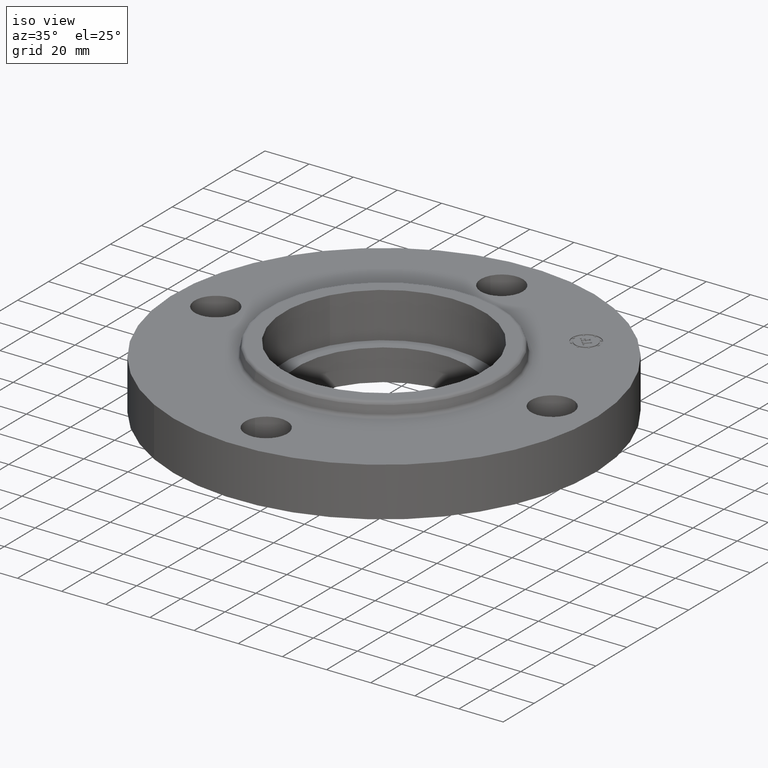
[diagram: clean part render]
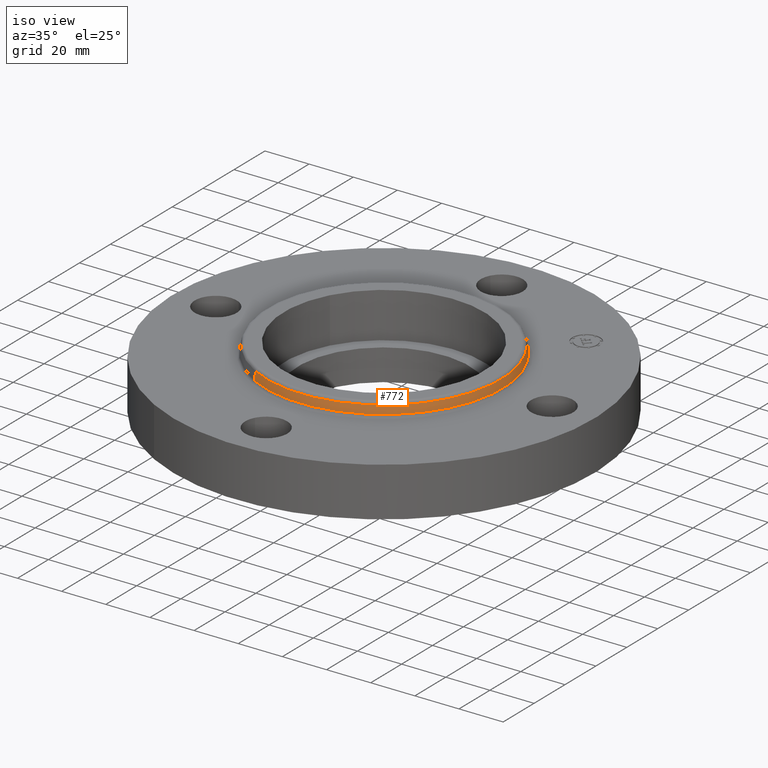
[diagram: same view with one face highlighted and labeled with its STEP entity id]
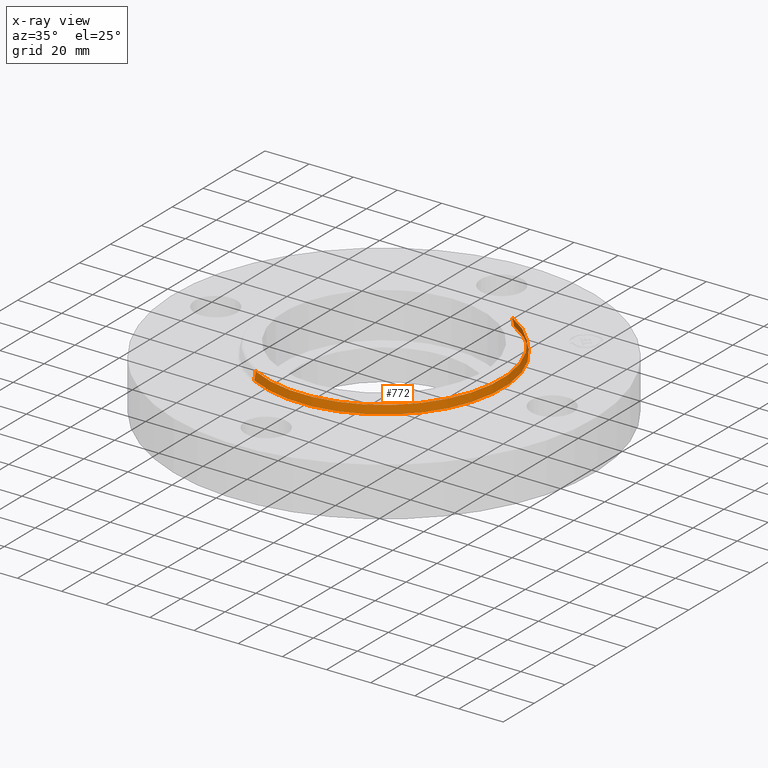
[diagram: x-ray of the same camera — body ghosted, the highlighted face saturated]
A machine part, iso view. The second image highlights one B-rep face of the part: STEP entity #772.
The next image is the same camera in x-ray: the body ghosted, the highlighted face saturated — about 0% of this face is hidden behind the body in this view.
In plain terms, the highlighted conical surface has half-angle 10 deg.
Its self-contained STEP definition (entity closure, byte-faithful):
#665=AXIS2_PLACEMENT_3D('Circle Axis2P3D',#663,#664,$) ;
#745=AXIS2_PLACEMENT_3D('Cone Axis2P3D',#742,#743,#744) ;
#756=AXIS2_PLACEMENT_3D('Circle Axis2P3D',#754,#755,$) ;
#660=CARTESIAN_POINT('Vertex',(1.01458789785,1.85719068961,0.929581109344)) ;
#663=CARTESIAN_POINT('Axis2P3D Location',(0.,0.,0.929581109344)) ;
#667=CARTESIAN_POINT('Vertex',(-1.01458789785,-1.85719068961,0.929581109344)) ;
#742=CARTESIAN_POINT('Axis2P3D Location',(0.,0.,1.07041889066)) ;
#747=CARTESIAN_POINT('Line Origine',(1.00863499061,1.84629396601,1.)) ;
#751=CARTESIAN_POINT('Vertex',(1.00268208338,1.8353972424,1.07041889066)) ;
#754=CARTESIAN_POINT('Axis2P3D Location',(0.,0.,1.07041889066)) ;
#758=CARTESIAN_POINT('Vertex',(-1.00268208338,-1.8353972424,1.07041889066)) ;
#761=CARTESIAN_POINT('Line Origine',(-1.00863499061,-1.84629396601,1.)) ;
#664=DIRECTION('Axis2P3D Direction',(0.,0.,-0.0393700787402)) ;
#743=DIRECTION('Axis2P3D Direction',(0.,0.,-0.0393700787402)) ;
#744=DIRECTION('Axis2P3D XDirection',(-0.0188750212049,-0.0345504945626,0.)) ;
#748=DIRECTION('Vector Direction',(0.00327761303565,0.00599963041829,-0.03877195878)) ;
#755=DIRECTION('Axis2P3D Direction',(0.,0.,-0.0393700787402)) ;
#762=DIRECTION('Vector Direction',(-0.00327761303565,-0.00599963041829,-0.03877195878)) ;
#749=VECTOR('Line Direction',#748,0.0393700787402) ;
#763=VECTOR('Line Direction',#762,0.0393700787402) ;
#767=ORIENTED_EDGE('',*,*,#669,.F.) ;
#768=ORIENTED_EDGE('',*,*,#753,.T.) ;
#769=ORIENTED_EDGE('',*,*,#760,.T.) ;
#770=ORIENTED_EDGE('',*,*,#765,.F.) ;
#772=ADVANCED_FACE('PartBody',(#771),#746,.T.) ;
#666=CIRCLE('generated circle',#665,2.1162575127) ;
#757=CIRCLE('generated circle',#756,2.09142401195) ;
#746=CONICAL_SURFACE('Cone',#745,2.09142401195,0.174532925199) ;
#669=EDGE_CURVE('',#661,#668,#666,.T.) ;
#753=EDGE_CURVE('',#661,#752,#750,.F.) ;
#760=EDGE_CURVE('',#752,#759,#757,.T.) ;
#765=EDGE_CURVE('',#668,#759,#764,.F.) ;
#766=EDGE_LOOP('',(#767,#768,#769,#770)) ;
#771=FACE_OUTER_BOUND('',#766,.T.) ;
#750=LINE('Line',#747,#749) ;
#764=LINE('Line',#761,#763) ;
#661=VERTEX_POINT('',#660) ;
#668=VERTEX_POINT('',#667) ;
#752=VERTEX_POINT('',#751) ;
#759=VERTEX_POINT('',#758) ;